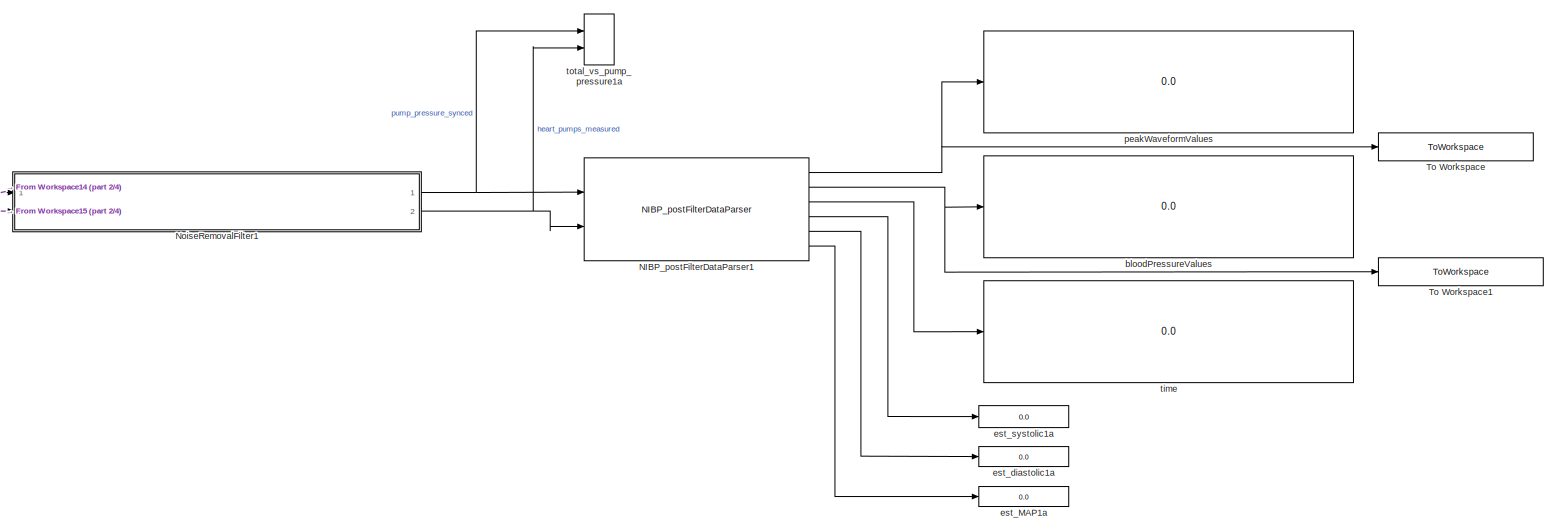
[diagram: root canvas - part 1/4, full width, top band]
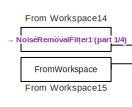
[diagram: root canvas - part 2/4, top left region]
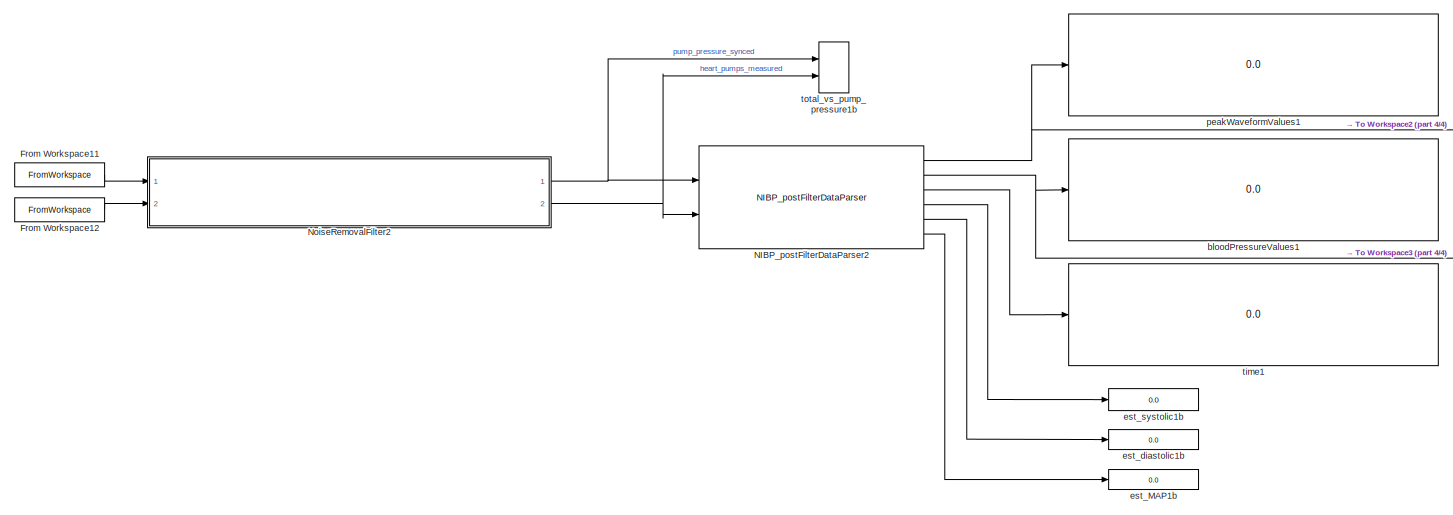
[diagram: root canvas - part 3/4, full width, bottom band]
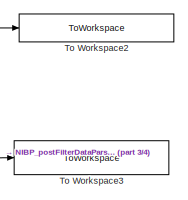
[diagram: root canvas - part 4/4, bottom right region]
MODEL slx_2d4c2a7a368d
KIND model
CONFIG AbsTol = auto
CONFIG EnableMultiTasking = off
CONFIG FixedStep = auto
CONFIG MaxStep = auto
CONFIG MinStep = auto
CONFIG RelTol = 1e-3
CONFIG SampleTimeConstraint = Unconstrained
CONFIG SolverName = VariableStepAuto
CONFIG StartTime = 0.0
CONFIG StopTime = 60
BLOCK [FromWorkspace] From Workspace11
  OutputAfterFinalValue = Holding final value
  SampleTime = 0.004
  VariableName = ts_total_pressure1b
BLOCK [FromWorkspace] From Workspace12
  OutputAfterFinalValue = Holding final value
  SampleTime = 0.004
  VariableName = ts_pump_pressure1b
BLOCK [FromWorkspace] From Workspace14
  OutputAfterFinalValue = Holding final value
  SampleTime = 0.004
  VariableName = ts_total_pressure1a
BLOCK [FromWorkspace] From Workspace15
  OutputAfterFinalValue = Holding final value
  SampleTime = 0.004
  VariableName = ts_pump_pressure1a
BLOCK [Reference] NIBP_postFilterDataParser1  REF=Heart_Signal_Processing_Library/NIBP_postFilterDataParser
  Ports = [2, 6]
  SourceBlock = Heart_Signal_Processing_Library/NIBP_postFilterDataParser
  SourceType = SubSystem
BLOCK [Reference] NIBP_postFilterDataParser2  REF=Heart_Signal_Processing_Library/NIBP_postFilterDataParser
  Ports = [2, 6]
  SourceBlock = Heart_Signal_Processing_Library/NIBP_postFilterDataParser
  SourceType = SubSystem
BLOCK [SubSystem] NoiseRemovalFilter1
  Ports = [2, 2]
  ReferencedSubsystem = NIBP_NoiseRemovalFilter_SR
  RequestExecContextInheritance = off
BLOCK [SubSystem] NoiseRemovalFilter2
  Ports = [2, 2]
  ReferencedSubsystem = NIBP_NoiseRemovalFilter_SR
  RequestExecContextInheritance = off
BLOCK [ToWorkspace] To Workspace
  MaxDataPoints = inf
  Ports = [1]
  SampleTime = -1
  Save2DSignal = 2-D array (concatenate along first dimension)
  VariableName = waveformPeaks1a
BLOCK [ToWorkspace] To Workspace1
  MaxDataPoints = inf
  Ports = [1]
  SampleTime = -1
  Save2DSignal = 2-D array (concatenate along first dimension)
  VariableName = bloodPressurePeaks1a
BLOCK [ToWorkspace] To Workspace2
  MaxDataPoints = inf
  Ports = [1]
  SampleTime = -1
  Save2DSignal = 2-D array (concatenate along first dimension)
  VariableName = waveformPeaks1b
BLOCK [ToWorkspace] To Workspace3
  MaxDataPoints = inf
  Ports = [1]
  SampleTime = -1
  Save2DSignal = 2-D array (concatenate along first dimension)
  VariableName = bloodPressurePeaks1b
BLOCK [Display] bloodPressureValues
  Decimation = 1
  Ports = [1]
BLOCK [Display] bloodPressureValues1
  Decimation = 1
  Ports = [1]
BLOCK [Display] est_MAP1a
  Decimation = 1
  Ports = [1]
BLOCK [Display] est_MAP1b
  Decimation = 1
  Ports = [1]
BLOCK [Display] est_diastolic1a
  Decimation = 1
  Ports = [1]
BLOCK [Display] est_diastolic1b
  Decimation = 1
  Ports = [1]
BLOCK [Display] est_systolic1a
  Decimation = 1
  Ports = [1]
BLOCK [Display] est_systolic1b
  Decimation = 1
  Ports = [1]
BLOCK [Display] peakWaveformValues
  Decimation = 1
  Ports = [1]
BLOCK [Display] peakWaveformValues1
  Decimation = 1
  Ports = [1]
BLOCK [Display] time
  Decimation = 1
  Ports = [1]
BLOCK [Display] time1
  Decimation = 1
  Ports = [1]
BLOCK [Record] total_vs_pump_pressure1a
  CompatibilityTag = XY
  FileSettingsInternal = {"entries":[{"content":{"excelSettings":{"content":{},"type":"Streamout.ExcelSettings"}},"type":"Streamout.FileSettingStorage","uuid":"17e9dd7f-06e2-4265-a8b4-4183b2def51a"}],"packageUris":["http://schema.mathworks.com/mf0/streamout_blocks/R2020a"],"version":"1.0"}
  Layout = [1 1]
  Ports = [2]
  SignalsInternal = {"entries":[{"content":{"signals":[{"content":{"blockPath":["nibp_processor_model/total_vs_pump_pressure1a"],"channel":[],"dimensions":[1],"domain":"nibp_processor_model/total_vs_pump_pressure1a","lineColor":"#a2142f","plots":[1],"port":1,"sid":[""],"signalID":292,"signalName":"pump_pressure_synced"},"type":"RecordBlkView.Signal","uuid":"6bcdf94a-66c7-4e15-b026-0ca0b3d54f78"},{"content":{"blockPat...<+499ch>
  VisualizationBindings = {"xyplotplugin":{"info":[{"series":[{"bindingParametersList":[{"parameter":"X-Axis","signalID":292,"signalName":"pump_pressure_synced"},{"parameter":"Y-Axis","signalID":296,"signalName":"heart_pumps_measured"}],"seriesID":3064}],"subplotID":1}]}}
  st = -1
BLOCK [Record] total_vs_pump_pressure1b
  CompatibilityTag = XY
  FileSettingsInternal = {"entries":[{"content":{"excelSettings":{"content":{},"type":"Streamout.ExcelSettings"}},"type":"Streamout.FileSettingStorage","uuid":"e1a465f7-e17b-4f0f-ae27-fe4fdded8e25"}],"packageUris":["http://schema.mathworks.com/mf0/streamout_blocks/R2020a"],"version":"1.0"}
  Layout = [1 1]
  Ports = [2]
  SignalsInternal = {"entries":[{"content":{"signals":[{"content":{"blockPath":["nibp_processor_model/total_vs_pump_pressure1b"],"channel":[],"dimensions":[1],"domain":"nibp_processor_model/total_vs_pump_pressure1b","lineColor":"#a2142f","plots":[1],"port":1,"sid":[""],"signalID":284,"signalName":"pump_pressure_synced"},"type":"RecordBlkView.Signal","uuid":"fa2a2a8b-9845-420f-8a27-e00e7067c09b"},{"content":{"blockPat...<+499ch>
  VisualizationBindings = {"xyplotplugin":{"info":[{"series":[{"bindingParametersList":[{"parameter":"X-Axis","signalID":284,"signalName":"pump_pressure_synced"},{"parameter":"Y-Axis","signalID":288,"signalName":"heart_pumps_measured"}],"seriesID":22357}],"subplotID":1}]}}
  st = -1
LINE From Workspace11:1 -> NoiseRemovalFilter2:1
LINE From Workspace12:1 -> NoiseRemovalFilter2:2
LINE From Workspace14:1 -> NoiseRemovalFilter1:1
LINE From Workspace15:1 -> NoiseRemovalFilter1:2
NET NIBP_postFilterDataParser1:1 -> To Workspace:1, peakWaveformValues:1
NET NIBP_postFilterDataParser1:2 -> To Workspace1:1, bloodPressureValues:1
LINE NIBP_postFilterDataParser1:3 -> time:1
LINE NIBP_postFilterDataParser1:4 -> est_systolic1a:1
LINE NIBP_postFilterDataParser1:5 -> est_diastolic1a:1
LINE NIBP_postFilterDataParser1:6 -> est_MAP1a:1
NET NIBP_postFilterDataParser2:1 -> To Workspace2:1, peakWaveformValues1:1
NET NIBP_postFilterDataParser2:2 -> To Workspace3:1, bloodPressureValues1:1
LINE NIBP_postFilterDataParser2:3 -> time1:1
LINE NIBP_postFilterDataParser2:4 -> est_systolic1b:1
LINE NIBP_postFilterDataParser2:5 -> est_diastolic1b:1
LINE NIBP_postFilterDataParser2:6 -> est_MAP1b:1
NET NoiseRemovalFilter1:1 -> NIBP_postFilterDataParser1:1, total_vs_pump_pressure1a:1
NET NoiseRemovalFilter1:2 -> NIBP_postFilterDataParser1:2, total_vs_pump_pressure1a:2
NET NoiseRemovalFilter2:1 -> NIBP_postFilterDataParser2:1, total_vs_pump_pressure1b:1
NET NoiseRemovalFilter2:2 -> NIBP_postFilterDataParser2:2, total_vs_pump_pressure1b:2
note: NET lines group one-source signal fan-out (src -> all destinations, sorted); 1:1 wires keep LINE
